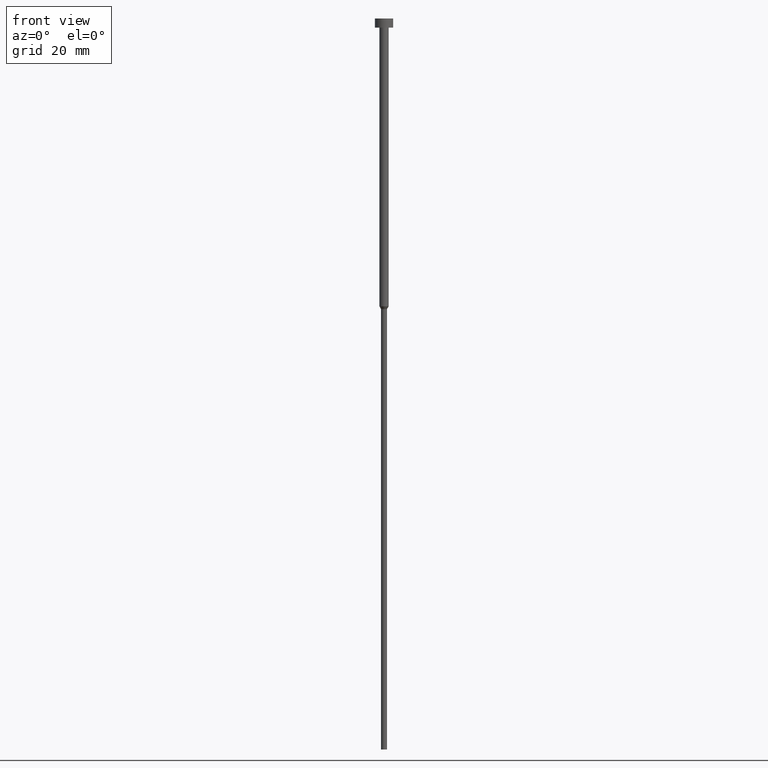
[diagram: clean part render]
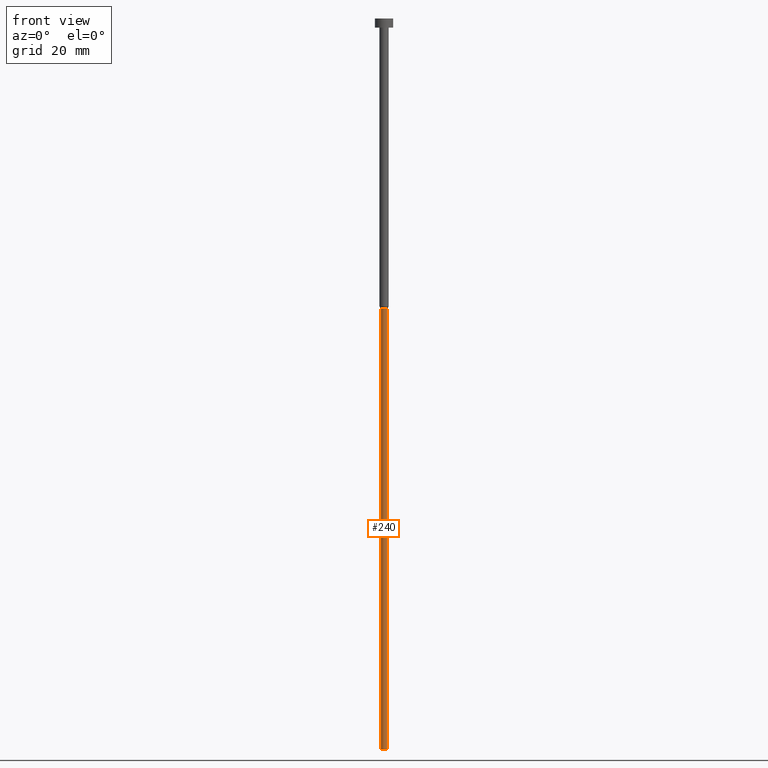
[diagram: same view with one face highlighted and labeled with its STEP entity id]
A machine part, front view. The second image highlights one B-rep face of the part: STEP entity #240.
In plain terms, the highlighted cylindrical surface (edge-blend (fillet) strip) has radius 0.65 mm, axis along (-0, -0, 1).
Its self-contained STEP definition (entity closure, byte-faithful):
#2 = VERTEX_POINT ( 'NONE', #328 ) ;
#3 = ORIENTED_EDGE ( 'NONE', *, *, #4, .F. ) ;
#4 = EDGE_CURVE ( 'NONE', #2, #85, #13, .T. ) ;
#13 = CIRCLE ( 'NONE', #307, 0.6500000000000000222 ) ;
#16 = FACE_OUTER_BOUND ( 'NONE', #352, .T. ) ;
#17 = CARTESIAN_POINT ( 'NONE',  ( 0.000000000000000000, 0.000000000000000000, -160.0000000000000000 ) ) ;
#18 = EDGE_CURVE ( 'NONE', #74, #2, #232, .T. ) ;
#23 = ORIENTED_EDGE ( 'NONE', *, *, #203, .T. ) ;
#37 = CARTESIAN_POINT ( 'NONE',  ( 0.6500000000000000222, 0.000000000000000000, -160.0000000000000000 ) ) ;
#39 = DIRECTION ( 'NONE',  ( 1.000000000000000000, 0.000000000000000000, 0.000000000000000000 ) ) ;
#72 = CYLINDRICAL_SURFACE ( 'NONE', #291, 0.6500000000000000222 ) ;
#74 = VERTEX_POINT ( 'NONE', #231 ) ;
#85 = VERTEX_POINT ( 'NONE', #92 ) ;
#92 = CARTESIAN_POINT ( 'NONE',  ( 0.6500000000000000222, 0.000000000000000000, -63.60621778264910375 ) ) ;
#95 = CIRCLE ( 'NONE', #317, 0.6500000000000000222 ) ;
#117 = VECTOR ( 'NONE', #156, 1000.000000000000000 ) ;
#124 = DIRECTION ( 'NONE',  ( 1.000000000000000000, 0.000000000000000000, 0.000000000000000000 ) ) ;
#131 = VERTEX_POINT ( 'NONE', #37 ) ;
#137 = DIRECTION ( 'NONE',  ( -0.000000000000000000, -0.000000000000000000, 1.000000000000000000 ) ) ;
#156 = DIRECTION ( 'NONE',  ( -0.000000000000000000, -0.000000000000000000, 1.000000000000000000 ) ) ;
#176 = CARTESIAN_POINT ( 'NONE',  ( 0.000000000000000000, 0.000000000000000000, 0.000000000000000000 ) ) ;
#201 = CARTESIAN_POINT ( 'NONE',  ( -0.6500000000000000222, 7.960204194457795477E-17, 0.000000000000000000 ) ) ;
#203 = EDGE_CURVE ( 'NONE', #74, #131, #95, .T. ) ;
#217 = ORIENTED_EDGE ( 'NONE', *, *, #18, .F. ) ;
#231 = CARTESIAN_POINT ( 'NONE',  ( -0.6500000000000000222, 7.960204194457795477E-17, -160.0000000000000000 ) ) ;
#232 = LINE ( 'NONE', #201, #287 ) ;
#240 = ADVANCED_FACE ( 'NONE', ( #16 ), #72, .T. ) ;
#244 = CARTESIAN_POINT ( 'NONE',  ( 0.000000000000000000, 0.000000000000000000, -63.60621778264910375 ) ) ;
#246 = ORIENTED_EDGE ( 'NONE', *, *, #318, .T. ) ;
#268 = LINE ( 'NONE', #347, #117 ) ;
#285 = DIRECTION ( 'NONE',  ( -0.000000000000000000, -0.000000000000000000, 1.000000000000000000 ) ) ;
#287 = VECTOR ( 'NONE', #137, 1000.000000000000000 ) ;
#291 = AXIS2_PLACEMENT_3D ( 'NONE', #176, #285, #124 ) ;
#307 = AXIS2_PLACEMENT_3D ( 'NONE', #244, #331, #39 ) ;
#317 = AXIS2_PLACEMENT_3D ( 'NONE', #17, #345, #319 ) ;
#318 = EDGE_CURVE ( 'NONE', #131, #85, #268, .T. ) ;
#319 = DIRECTION ( 'NONE',  ( 1.000000000000000000, 0.000000000000000000, 0.000000000000000000 ) ) ;
#328 = CARTESIAN_POINT ( 'NONE',  ( -0.6500000000000000222, 7.960204194457795477E-17, -63.60621778264910375 ) ) ;
#331 = DIRECTION ( 'NONE',  ( -0.000000000000000000, -0.000000000000000000, 1.000000000000000000 ) ) ;
#345 = DIRECTION ( 'NONE',  ( -0.000000000000000000, -0.000000000000000000, 1.000000000000000000 ) ) ;
#347 = CARTESIAN_POINT ( 'NONE',  ( 0.6500000000000000222, 0.000000000000000000, 0.000000000000000000 ) ) ;
#352 = EDGE_LOOP ( 'NONE', ( #217, #23, #246, #3 ) ) ;